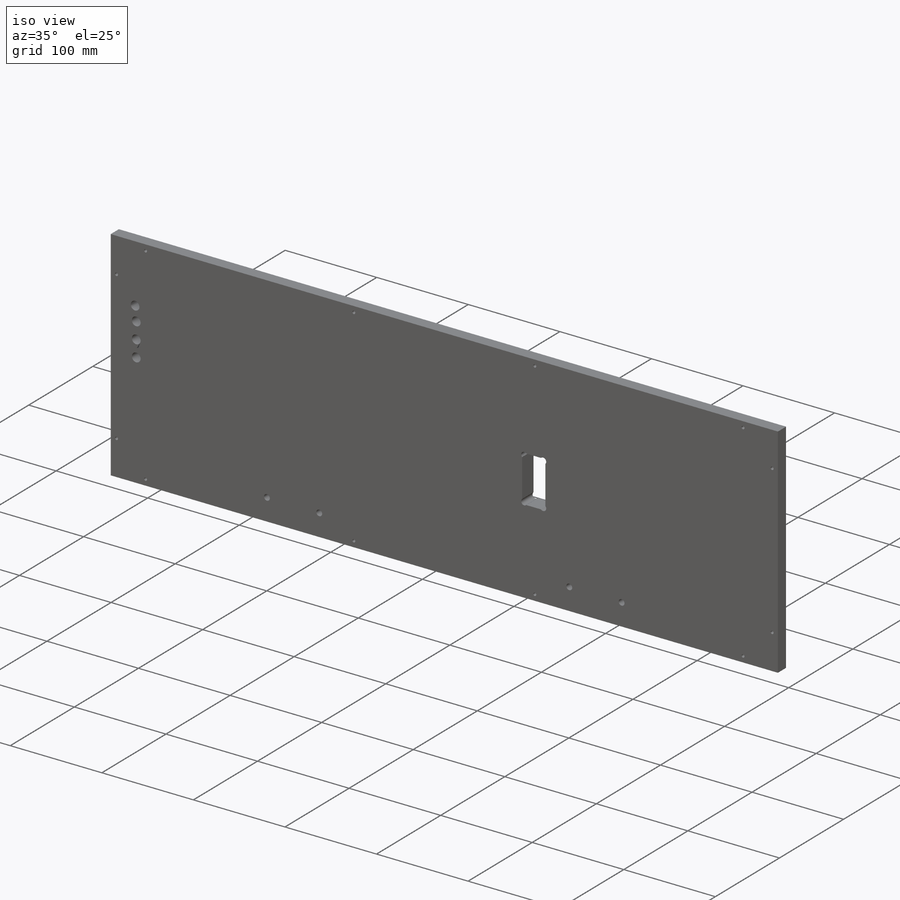
[diagram: iso view]
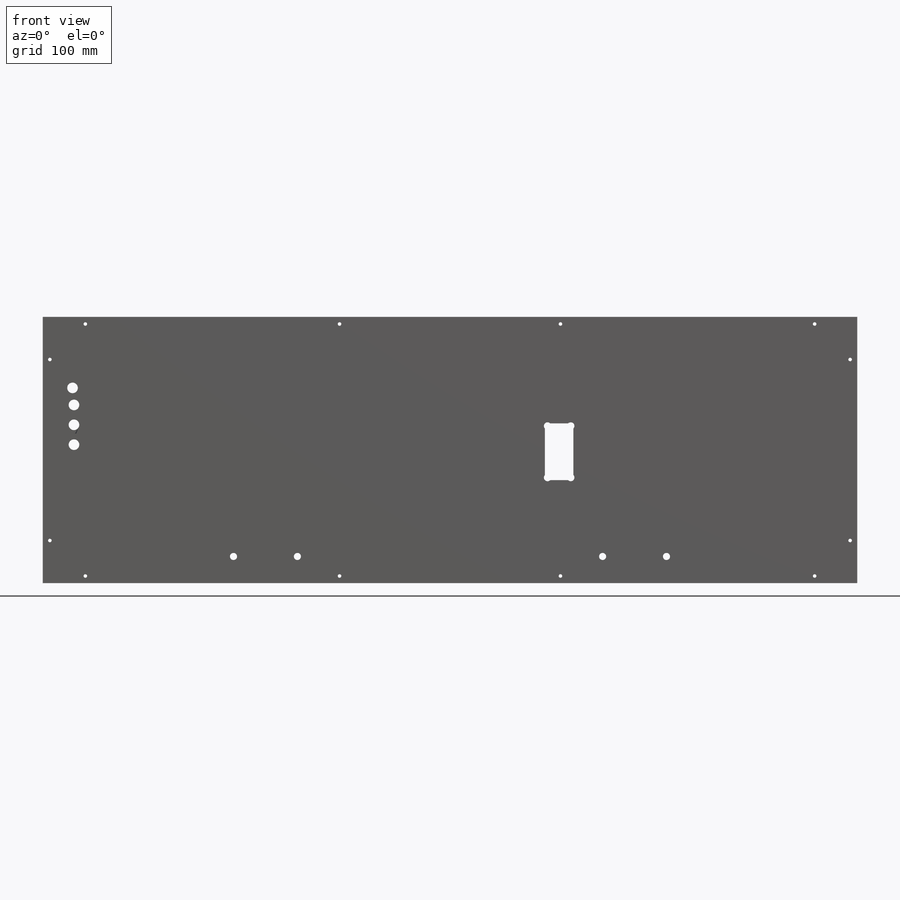
[diagram: front view]
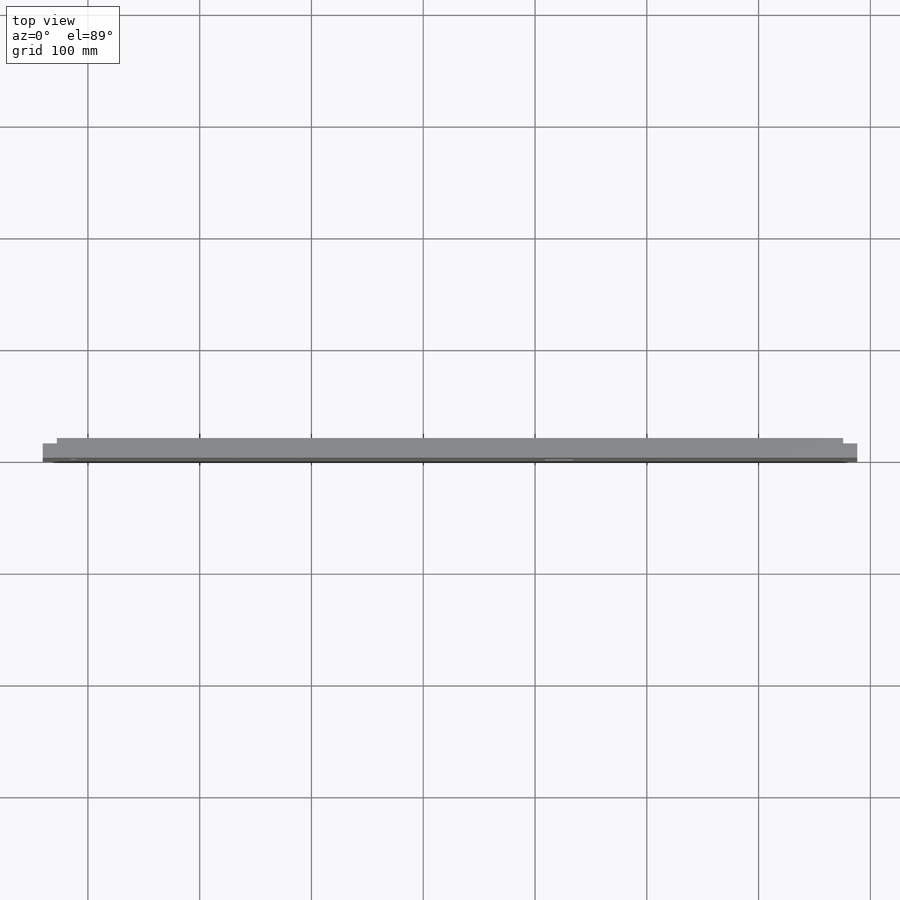
[diagram: top view]
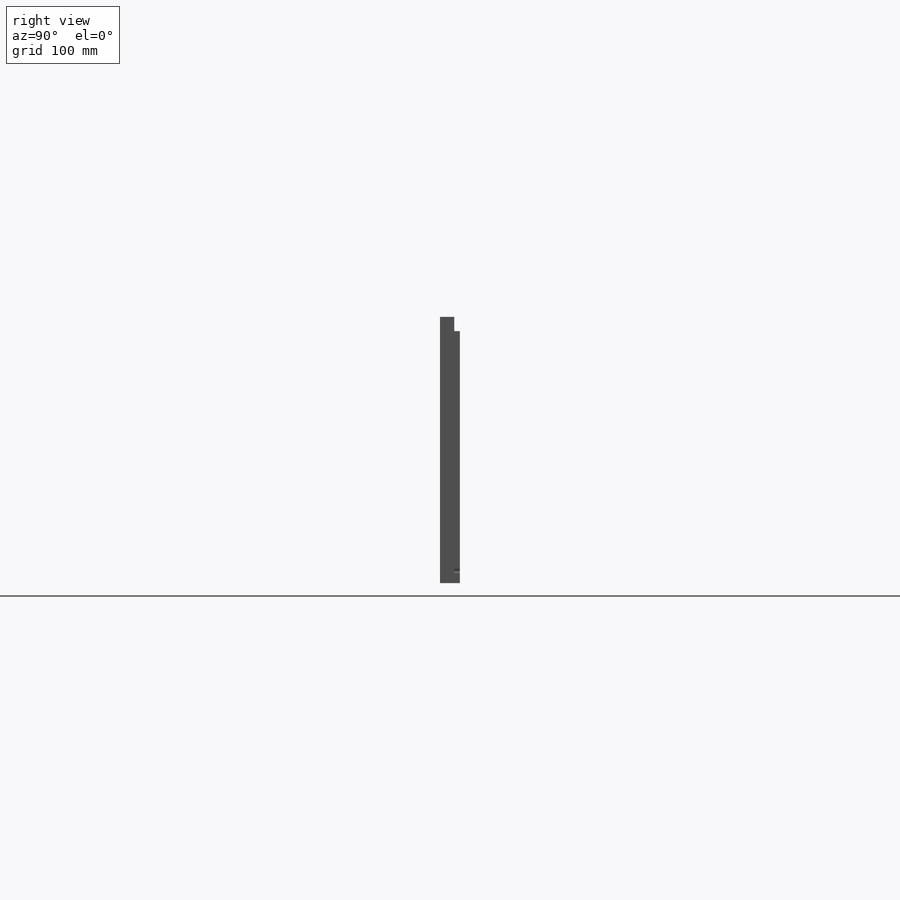
[diagram: right view]
SOLIDWORKS PART (.sldprt)
format: sldprt  version: not decoded by parser v0  size: 611,328 bytes
history: native  units: mm
features: sketch x8, cut_extrude x6, material x1, extrude x1 + 1 further entry (+15 scaffold rows collapsed)
feature tree (32):
  scaffold x15  (default folders/planes/origin — collapsed)
  material  "Pine"
  "Design Table"
  sketch  "Sketch1"
  sketch  "Sketch2"
  extrude  "Extrude1"  Depth=17.78mm
  sketch  "Sketch3"
  cut_extrude  "Cut-Extrude1"  [1 undecoded]
  sketch  "Sketch6"  dims[c1.D1=3.302mm c2.D1=45.0deg c3.D1=3.302mm c4.D1=135.0deg c5.D1=3.302mm c6.D1=135.0deg c7.D1=3.302mm c8.D1=45.0deg c9.D1=3.302mm c10.D1=135.0deg]
  cut_extrude  "Cut-Extrude4"  [1 undecoded]
  sketch  "Sketch4"  dims[D1=9.525mm]
  cut_extrude  "Cut-Extrude2"  Depth=3.175mm
  sketch  "Sketch5"  dims[D1=101.6mm D2=12.7mm D3=12.7mm D4=12.7mm D5=12.7mm D6=101.6mm D7=12.7mm]
  cut_extrude  "Cut-Extrude3"  Depth=5.08mm
  sketch  "Sketch7"  dims[c1.D1=3.302mm c2.D1=135.0deg c3.D1=3.302mm c4.D1=45.0deg c5.D1=3.302mm c6.D1=45.0deg]
  cut_extrude  "Cut-Extrude5"  [1 undecoded]
  sketch  "Sketch8"  dims[c1.D2=9.525mm c1.D1=15.24mm c2.D2=15.24mm c2.D3=15.24mm c2.D4=13.97mm]
  cut_extrude  "Cut-Extrude6"  [1 undecoded]
decode coverage: 8 of 15 modeling features carry decoded parameters; 1 rows unclassified (native names shown)
note: 4 parameter values undecoded
summary: no parameter record found for 4 features
note: suppression state not decoded; provenance and decode notes live in map.json
